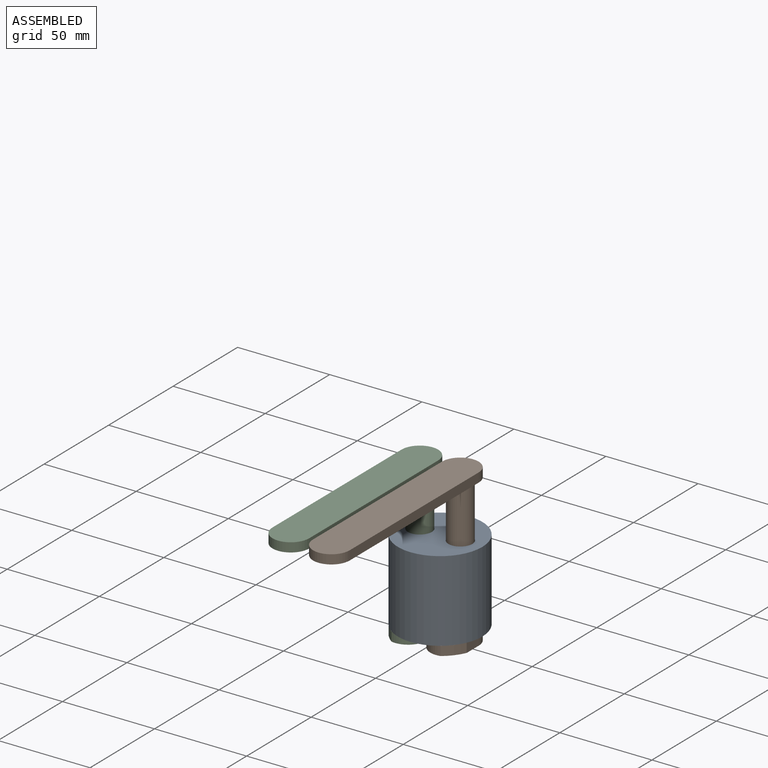
[diagram: assembled view]
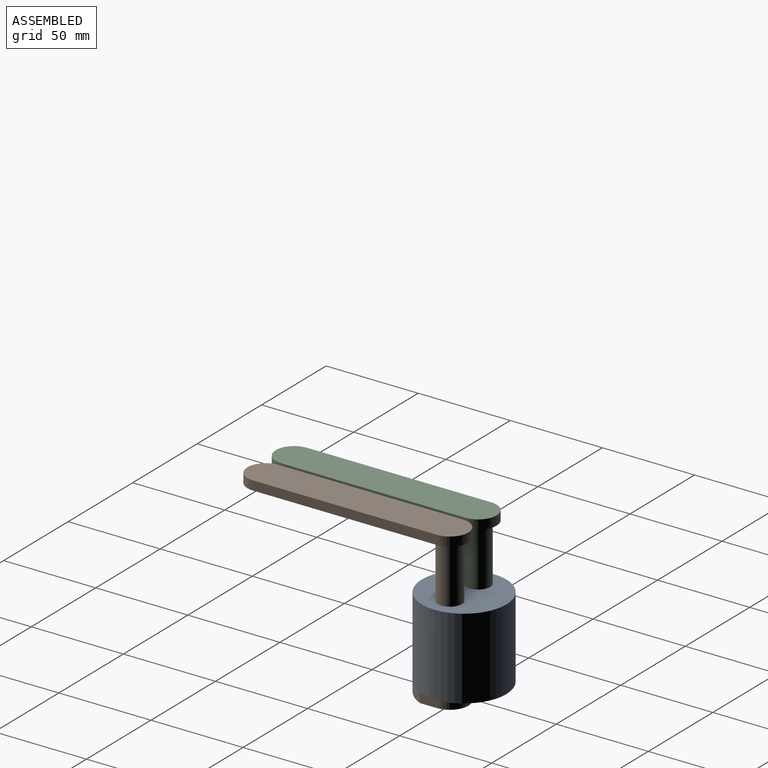
[diagram: assembled view, second angle]
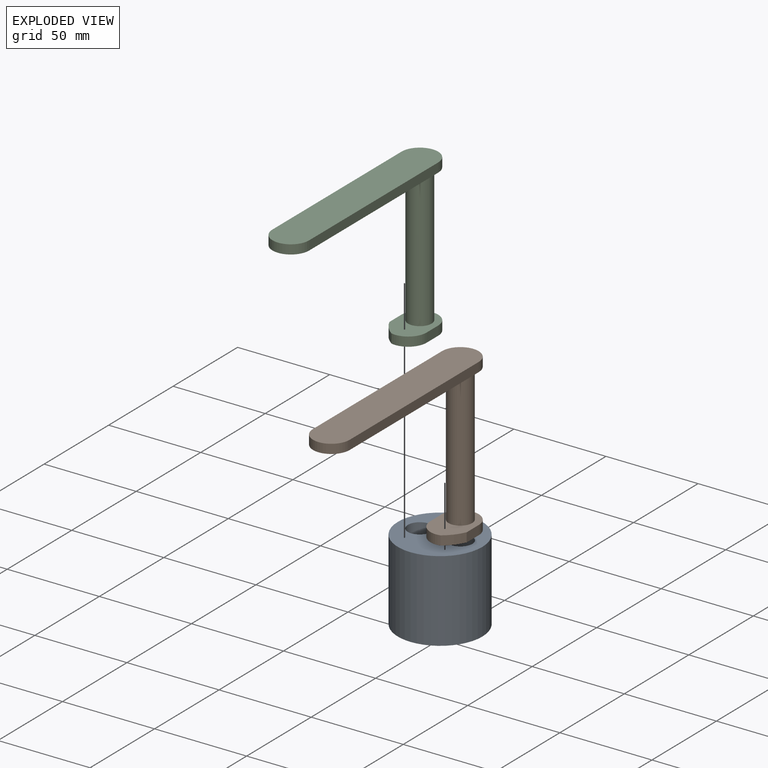
[diagram: exploded view]
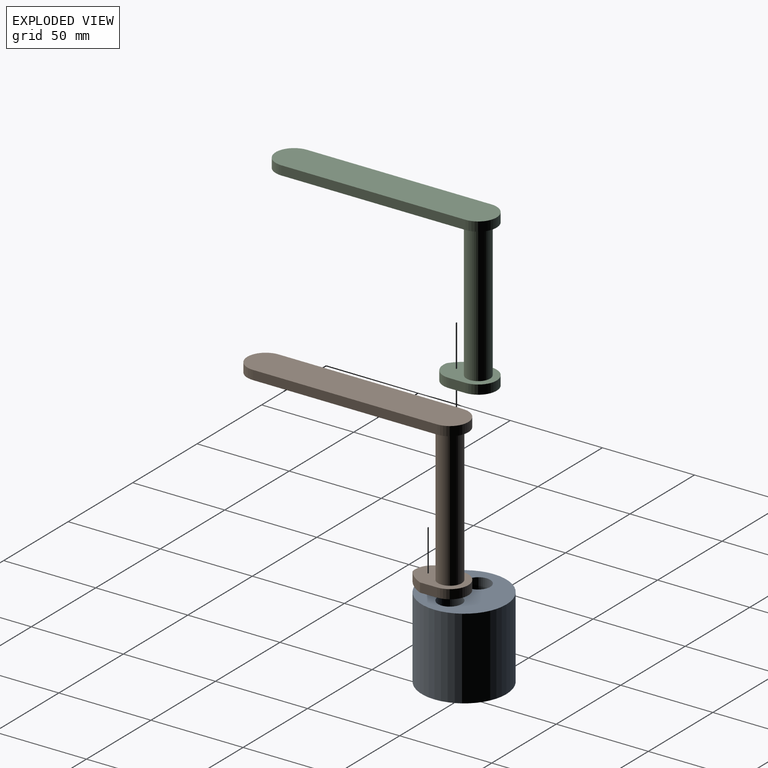
[diagram: exploded view, second angle]
ASSEMBLY  parts=3 mates=2
PART A: 5 faces, bbox 45.9x45.9x44 mm
  f0: cylinder r=6.5mm len=44mm, axis (0,0,-1), area 1797mm2, adj f3,f4
  f1: cylinder r=6.5mm len=44mm, axis (0,0,-1), area 1797mm2, adj f3,f4
  f2: cylinder r=22.95mm len=45.9mm, axis (0,0,-1), area 6344.8mm2, adj f3,f4
  f3: plane 45.9x45.9mm, normal (0,0,1), area 1389.2mm2, adj f0,f1,f2
  f4: plane 45.9x45.9mm, normal (0,0,-1), area 1389.2mm2, adj f0,f1,f2
PART B: 18 faces, bbox 20x119.9x85 mm
  f0: cone r=4mm half-angle=45deg, axis (0,0,-1), area 70mm2, adj f7,f11
  f1: plane 9x5mm, normal (-1,0,0), area 45mm2, adj f2,f6,f7,f8
  f2: cylinder r=9.97mm len=19.95mm, axis (0,0,1), area 156.7mm2, adj f1,f3,f7,f8
  f3: plane 9x5mm, normal (1,0,0), area 45mm2, adj f2,f4,f7,f8
  f4: cylinder r=9.97mm len=5mm, axis (0,0,1), area 1.6mm2, adj f3,f5,f7,f8
  f5: cylinder r=22.95mm len=9.38mm, axis (0,0,1), area 61.3mm2, adj f4,f6,f7,f8
  f6: cylinder r=9.97mm len=12.27mm, axis (0,0,1), area 89.9mm2, adj f1,f5,f7,f8
  f7: plane 28.95x19.95mm, normal (0,0,-1), area 368.7mm2, adj f0,f1,f2,f3,f4,f5,f6
  f8: plane 28.95x19.95mm, normal (0,0,1), area 352.1mm2, adj f1,f2,f3,f4,f5,f6,f10
  f9: plane 6x6mm, normal (0,0,-1), area 28.3mm2, adj f11
  f10: cylinder r=6.42mm len=75mm, axis (0,0,-1), area 3027.7mm2, adj f8,f17
  f11: cone r=3mm half-angle=45deg, axis (0,0,1), area 50mm2, adj f0,f9
  f12: plane 100x5mm, normal (1,0,0), area 500mm2, adj f13,f15,f16,f17
  f13: cylinder r=9.95mm len=19.9mm, axis (0,0,-1), area 156.3mm2, adj f12,f14,f16,f17
  f14: plane 100x5mm, normal (-1,0,0), area 500mm2, adj f13,f15,f16,f17
  f15: cylinder r=9.95mm len=19.9mm, axis (0,0,-1), area 156.3mm2, adj f12,f14,f16,f17
  f16: plane 119.9x19.9mm, normal (0,0,1), area 2301mm2, adj f12,f13,f14,f15
  f17: plane 119.9x19.9mm, normal (0,0,-1), area 2171.3mm2, adj f10,f12,f13,f14,f15
PART C: 18 faces, bbox 20x119.9x85 mm
  f0: plane 28.95x19.95mm, normal (0,0,1), area 352.1mm2, adj f1,f2,f3,f4,f5,f6,f10
  f1: cylinder r=22.95mm len=9.38mm, axis (0,0,1), area 61.3mm2, adj f0,f2,f6,f7
  f2: cylinder r=9.97mm len=5mm, axis (0,0,1), area 1.6mm2, adj f0,f1,f3,f7
  f3: plane 9x5mm, normal (-1,0,0), area 45mm2, adj f0,f2,f4,f7
  f4: cylinder r=9.97mm len=19.95mm, axis (0,0,1), area 156.7mm2, adj f0,f3,f5,f7
  f5: plane 9x5mm, normal (1,0,0), area 45mm2, adj f0,f4,f6,f7
  f6: cylinder r=9.97mm len=12.27mm, axis (0,0,1), area 89.9mm2, adj f0,f1,f5,f7
  f7: plane 28.95x19.95mm, normal (0,0,-1), area 327.9mm2, adj f1,f2,f3,f4,f5,f6,f8
  f8: cone r=5mm half-angle=45deg, axis (0,0,-1), area 106.6mm2, adj f7,f11
  f9: plane 6x6mm, normal (0,0,-1), area 28.3mm2, adj f11
  f10: cylinder r=6.42mm len=75mm, axis (0,0,-1), area 3027.7mm2, adj f0,f17
  f11: cone r=3mm half-angle=45deg, axis (0,0,1), area 71.1mm2, adj f8,f9
  f12: plane 100x5mm, normal (1,0,0), area 500mm2, adj f13,f15,f16,f17
  f13: cylinder r=9.95mm len=19.9mm, axis (0,0,-1), area 156.3mm2, adj f12,f14,f16,f17
  f14: plane 100x5mm, normal (-1,0,0), area 500mm2, adj f13,f15,f16,f17
  f15: cylinder r=9.95mm len=19.9mm, axis (0,0,-1), area 156.3mm2, adj f12,f14,f16,f17
  f16: plane 119.9x19.9mm, normal (0,0,1), area 2301mm2, adj f12,f13,f14,f15
  f17: plane 119.9x19.9mm, normal (0,0,-1), area 2171.3mm2, adj f10,f12,f13,f14,f15
PLACE A at identity fixed
PLACE B rot(axis=(0,0,1),0deg) t=(0,0,0)mm
PLACE C rot(axis=(0,0,1),0deg) t=(0,0,0)mm
MATE revolute A.f1 <-> B.f10  axis (0,0,-1) through (11,0,0)mm
MATE revolute A.f0 <-> C.f10  axis (0,0,-1) through (-11,0,0)mm
